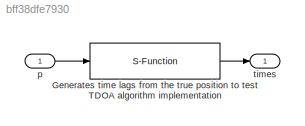
MODEL slx_bff38dfe7930
KIND model
CONFIG AbsTol = auto
CONFIG FixedStep = auto
CONFIG MaxStep = auto
CONFIG MinStep = auto
CONFIG RelTol = 1e-3
CONFIG SampleTimeConstraint = Unconstrained
CONFIG Solver = VariableStepAuto
CONFIG SolverMode = Auto
CONFIG SolverName = VariableStepAuto
CONFIG StartTime = 0.0
CONFIG StopTime = 10.0
BLOCK [S-Function] Generates time lags from the true position to test TDOA algorithm implementation
  EnableBusSupport = off
  FunctionName = sfunc_TDOA_generator
  Parameters = TDOAparam
  Ports = [1, 1]
  SFunctionDeploymentMode = off
BLOCK [Inport] p
  IconDisplay = Port number
BLOCK [Outport] times
  IconDisplay = Port number
LINE Generates time lags from the true position to test TDOA algorithm implementation:1 -> times:1
LINE p:1 -> Generates time lags from the true position to test TDOA algorithm implementation:1
